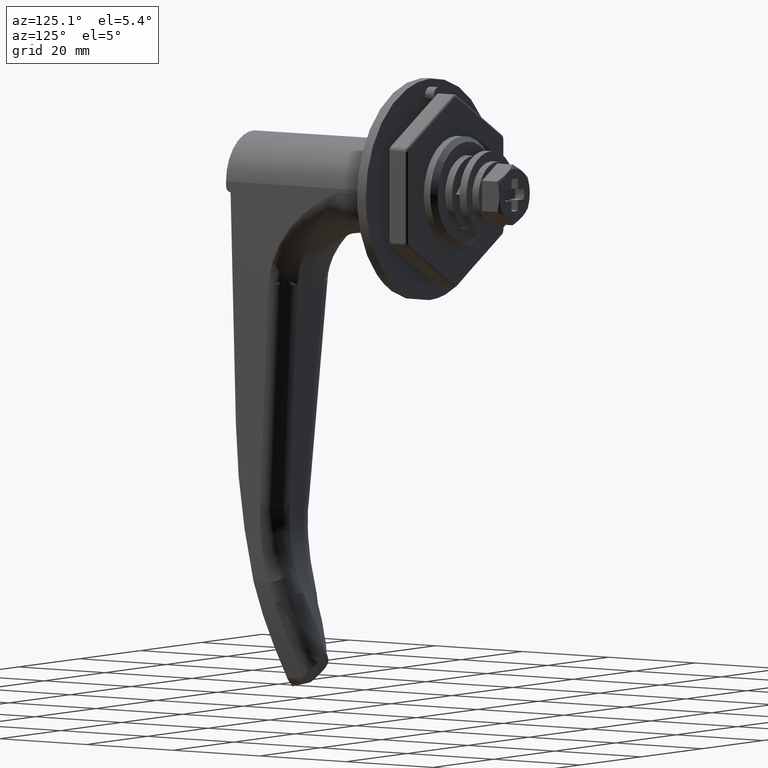
[diagram: clean part render]
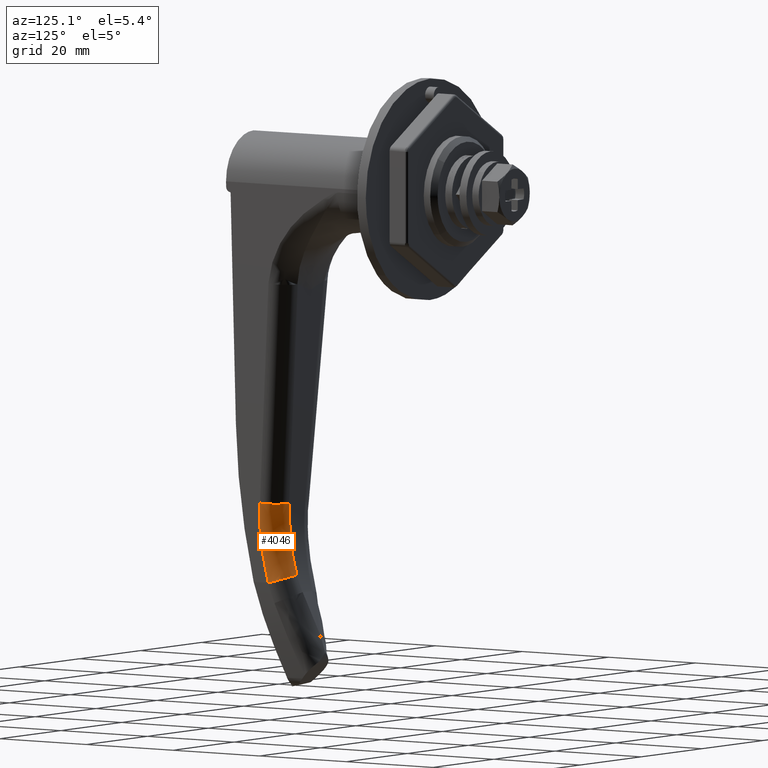
[diagram: same view with one face highlighted and labeled with its STEP entity id]
A machine part, auxiliary view. The second image highlights one B-rep face of the part: STEP entity #4046.
In plain terms, the highlighted face is a freeform B-spline surface patch.
Its self-contained STEP definition (entity closure, byte-faithful):
#3929=CARTESIAN_POINT('',(-21.588726110713299,-2.599990310246715,-61.018468637680101));
#3930=VERTEX_POINT('',#3929);
#3942=CARTESIAN_POINT('',(-25.577598721784600,-6.596877603882801,-60.878087368302197));
#3943=VERTEX_POINT('',#3942);
#3949=CARTESIAN_POINT('',(-25.577598721784600,-6.596877603882801,-60.878087368302197));
#3950=CARTESIAN_POINT('',(-25.251871618778551,-6.595982949807877,-60.902398921608018));
#3951=CARTESIAN_POINT('',(-24.567830654966048,-6.509549950482032,-60.950116566741002));
#3952=CARTESIAN_POINT('',(-23.743588864375941,-6.177516490052011,-60.998618938198561));
#3953=CARTESIAN_POINT('',(-23.037030832383529,-5.703421611778265,-61.032717206396889));
#3954=CARTESIAN_POINT('',(-22.426280457795631,-5.106327812175924,-61.054798994103493));
#3955=CARTESIAN_POINT('',(-21.786157078490660,-4.068238370173972,-61.061668580056413));
#3956=CARTESIAN_POINT('',(-21.589625716803852,-3.154974455678369,-61.040308664427123));
#3957=CARTESIAN_POINT('',(-21.588726110713299,-2.599990310246715,-61.018468637680101));
#3958=B_SPLINE_CURVE_WITH_KNOTS('',3,(#3949,#3950,#3951,#3952,#3953,#3954,#3955,#3956,#3957),.UNSPECIFIED.,.F.,.U.,(4,1,1,1,1,1,4),(0.000000341842945,0.979935157145269,2.057871144915541,2.645856633518908,3.527709217342260,4.605690348038548,6.271582032660225),.UNSPECIFIED.);
#3959=EDGE_CURVE('',#3943,#3930,#3958,.T.);
#3964=CARTESIAN_POINT('',(-25.600095044846274,-6.599965451976960,-60.799861883250280));
#3965=CARTESIAN_POINT('',(-25.601991972839230,-6.598963848088650,-60.825235848420874));
#3966=CARTESIAN_POINT('',(-25.603888900527455,-6.597962244361217,-60.850609809515660));
#3967=CARTESIAN_POINT('',(-25.796625669706717,-6.496194597856536,-63.428723520965512));
#3968=CARTESIAN_POINT('',(-25.764271021817081,-6.394772709091402,-65.998078036351458));
#3969=CARTESIAN_POINT('',(-25.254155986726918,-6.193684729117401,-71.092306862358711));
#3970=CARTESIAN_POINT('',(-24.776407632836925,-6.094023128191967,-73.617067419133988));
#3971=CARTESIAN_POINT('',(-24.083185746956424,-5.996750961155517,-76.081295650726901));
#3972=CARTESIAN_POINT('',(-25.586024422431535,-6.599923022664046,-60.800936759177432));
#3973=CARTESIAN_POINT('',(-25.587920577774515,-6.598921742716633,-60.826302517845171));
#3974=CARTESIAN_POINT('',(-25.589816732965023,-6.597920462849759,-60.851668274472786));
#3975=CARTESIAN_POINT('',(-25.782475805387602,-6.496185303535691,-63.428958977094638));
#3976=CARTESIAN_POINT('',(-25.750115104850650,-6.394795935719537,-65.997489628438515));
#3977=CARTESIAN_POINT('',(-25.240132216652167,-6.193772654469419,-71.090079420107770));
#3978=CARTESIAN_POINT('',(-24.762521735406715,-6.094143231190627,-73.614024809835982));
#3979=CARTESIAN_POINT('',(-24.069508686597196,-5.996902608813937,-76.077453910046785));
#3980=CARTESIAN_POINT('',(-21.595524497329109,-6.587889854193060,-61.105777027100316));
#3981=CARTESIAN_POINT('',(-21.597155982204885,-6.586980309252233,-61.128818832270838));
#3982=CARTESIAN_POINT('',(-21.598787504056805,-6.586070743697395,-61.151861159663056));
#3983=CARTESIAN_POINT('',(-21.764752128845284,-6.493546266717291,-63.495814576791361));
#3984=CARTESIAN_POINT('',(-21.726009118986568,-6.401398574992653,-65.830222766805406));
#3985=CARTESIAN_POINT('',(-21.244383991204504,-6.218824945502763,-70.455421380644026));
#3986=CARTESIAN_POINT('',(-20.801515032051618,-6.128403082610530,-72.746108574269158));
#3987=CARTESIAN_POINT('',(-20.163690124775513,-6.040209300717856,-74.980351048480898));
#3988=CARTESIAN_POINT('',(-21.583514578828748,-2.588903184132908,-60.948758505140219));
#3989=CARTESIAN_POINT('',(-21.585237975229074,-2.587902066094641,-60.971810846861743));
#3990=CARTESIAN_POINT('',(-21.586961371491284,-2.586900948136596,-60.994863186735905));
#3991=CARTESIAN_POINT('',(-21.762067255231237,-2.485182238044236,-63.337098942049231));
#3992=CARTESIAN_POINT('',(-21.732675696307069,-2.383809291854194,-65.671375820950530));
#3993=CARTESIAN_POINT('',(-21.269238905175637,-2.182818625620316,-70.299520059411876));
#3994=CARTESIAN_POINT('',(-20.835204010433472,-2.083205394578886,-72.593284006749471));
#3995=CARTESIAN_POINT('',(-20.205410442353379,-1.985980603338586,-74.832052758203830));
#3996=CARTESIAN_POINT('',(-21.583472386333181,-2.574854193932077,-60.948206877475911));
#3997=CARTESIAN_POINT('',(-21.585196106109137,-2.573852914512983,-60.971259262508418));
#3998=CARTESIAN_POINT('',(-21.586919825609236,-2.572851635254132,-60.994311643851681));
#3999=CARTESIAN_POINT('',(-21.762057834052932,-2.471116953201203,-63.336542011442162));
#4000=CARTESIAN_POINT('',(-21.732699062109173,-2.369727973722485,-65.670819075543974));
#4001=CARTESIAN_POINT('',(-21.269325818854895,-2.168705353725957,-70.298974897298422));
#4002=CARTESIAN_POINT('',(-20.835321680346631,-2.069076202081084,-72.592750216339383));
#4003=CARTESIAN_POINT('',(-20.205556000840410,-1.971835759061681,-74.831535358624450));
#4011=(BOUNDED_SURFACE()B_SPLINE_SURFACE(3,2,((#3964,#3972,#3980,#3988,#3996),(#3965,#3973,#3981,#3989,#3997),(#3966,#3974,#3982,#3990,#3998),(#3967,#3975,#3983,#3991,#3999),(#3968,#3976,#3984,#3992,#4000),(#3969,#3977,#3985,#3993,#4001),(#3970,#3978,#3986,#3994,#4002),(#3971,#3979,#3987,#3995,#4003)),.UNSPECIFIED.,.F.,.F.,.U.)B_SPLINE_SURFACE_WITH_KNOTS((4,2,2,4),(3,1,1,3),(0.0,0.076393441008662,7.761996638597544,15.447599836186440),(0.0,0.033512677083153,6.711043829405217,6.744432998037830),.UNSPECIFIED.)GEOMETRIC_REPRESENTATION_ITEM()RATIONAL_B_SPLINE_SURFACE(((1.002929232263476,1.001464616131738,0.708169543674277,1.001459218399154,1.002918436798308),(1.002929312812263,1.001464656406132,0.708161518844812,1.001459258525119,1.002918517050239),(1.002929393361051,1.001464696680525,0.708153494015346,1.001459298651085,1.002918597302170),(1.002937577563892,1.001468788781946,0.707338126903786,1.001463375671373,1.002926751342747),(1.002945748144168,1.001472874072084,0.706524116966686,1.001467445905482,1.002934891810964),(1.002961975537254,1.001480987768627,0.704907431397482,1.001475529699607,1.002951059399214),(1.002970032217654,1.001485016108827,0.704104768956867,1.001479543193662,1.002959086387324),(1.002977908450875,1.001488954225438,0.703320083917133,1.001483466796640,1.002966933593281)))REPRESENTATION_ITEM('')SURFACE());
#4012=CARTESIAN_POINT('',(-24.080909979446901,-6.000593585881109,-75.983949157678595));
#4013=VERTEX_POINT('',#4012);
#4014=CARTESIAN_POINT('',(-20.261864780261750,-2.008992528875495,-74.629326632896607));
#4015=VERTEX_POINT('',#4014);
#4016=CARTESIAN_POINT('',(-24.080909979446901,-6.000593585881109,-75.983949157678595));
#4017=CARTESIAN_POINT('',(-23.794964476068699,-6.003621731176771,-75.905403851181603));
#4018=CARTESIAN_POINT('',(-23.191959256451671,-5.940155080283345,-75.734472568806680));
#4019=CARTESIAN_POINT('',(-22.201445784607760,-5.580360662321101,-75.434328792081445));
#4020=CARTESIAN_POINT('',(-21.227394361318289,-4.831272336768929,-75.109216067191625));
#4021=CARTESIAN_POINT('',(-20.441071037423232,-3.586134481029744,-74.798225421669358));
#4022=CARTESIAN_POINT('',(-20.250189251364692,-2.567762924150717,-74.668458608072086));
#4023=CARTESIAN_POINT('',(-20.261864780261750,-2.008992528875495,-74.629326632896607));
#4024=B_SPLINE_CURVE_WITH_KNOTS('',3,(#4016,#4017,#4018,#4019,#4020,#4021,#4022,#4023),.UNSPECIFIED.,.F.,.U.,(4,1,1,1,1,4),(0.000000356103261,0.889689262437129,1.878321092794118,3.262269133401246,4.646326590743797,6.326916610756729),.UNSPECIFIED.);
#4025=EDGE_CURVE('',#4013,#4015,#4024,.T.);
#4026=ORIENTED_EDGE('',*,*,#4025,.T.);
#4027=CARTESIAN_POINT('',(-21.588726110713299,-2.599990310246715,-61.018468637680101));
#4028=CARTESIAN_POINT('',(-21.722161460661368,-2.522508461554594,-62.802899092408452));
#4029=CARTESIAN_POINT('',(-21.756591819746721,-2.323159363348565,-67.393969232909669));
#4030=CARTESIAN_POINT('',(-21.004169807500901,-2.125847614051619,-71.938118610660169));
#4031=CARTESIAN_POINT('',(-20.261864780261750,-2.008992528875495,-74.629326632896607));
#4032=B_SPLINE_CURVE_WITH_KNOTS('',3,(#4027,#4028,#4029,#4030,#4031),.UNSPECIFIED.,.F.,.U.,(4,1,4),(5.782763E-009,5.373281125133437,13.755592899214991),.UNSPECIFIED.);
#4033=EDGE_CURVE('',#3930,#4015,#4032,.T.);
#4034=ORIENTED_EDGE('',*,*,#4033,.F.);
#4035=ORIENTED_EDGE('',*,*,#3959,.F.);
#4036=CARTESIAN_POINT('',(-24.080909979446901,-6.000593585881109,-75.983949157678595));
#4037=CARTESIAN_POINT('',(-24.850157924799500,-6.109355541333754,-73.228646286211031));
#4038=CARTESIAN_POINT('',(-25.737042562092689,-6.307987168704986,-68.196645059473369));
#4039=CARTESIAN_POINT('',(-25.743548352084471,-6.509299744134914,-63.096726481916370));
#4040=CARTESIAN_POINT('',(-25.577598721784600,-6.596877603882801,-60.878087368302197));
#4041=B_SPLINE_CURVE_WITH_KNOTS('',3,(#4036,#4037,#4038,#4039,#4040),.UNSPECIFIED.,.F.,.U.,(4,1,4),(5.897871E-009,8.588124524655953,15.267801479541109),.UNSPECIFIED.);
#4042=EDGE_CURVE('',#4013,#3943,#4041,.T.);
#4043=ORIENTED_EDGE('',*,*,#4042,.F.);
#4044=EDGE_LOOP('',(#4026,#4034,#4035,#4043));
#4045=FACE_OUTER_BOUND('',#4044,.T.);
#4046=ADVANCED_FACE('',(#4045),#4011,.T.);